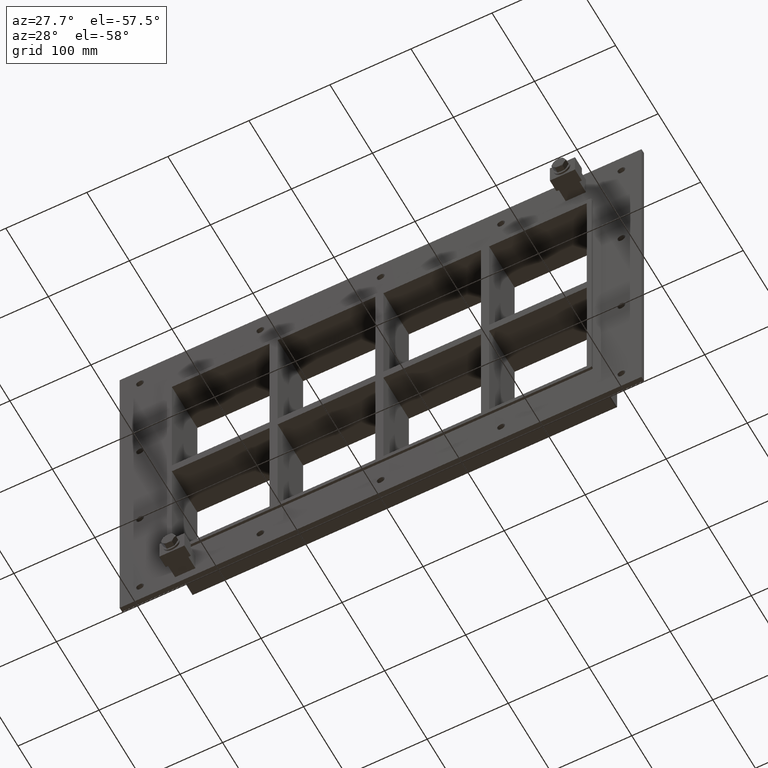
[diagram: clean part render]
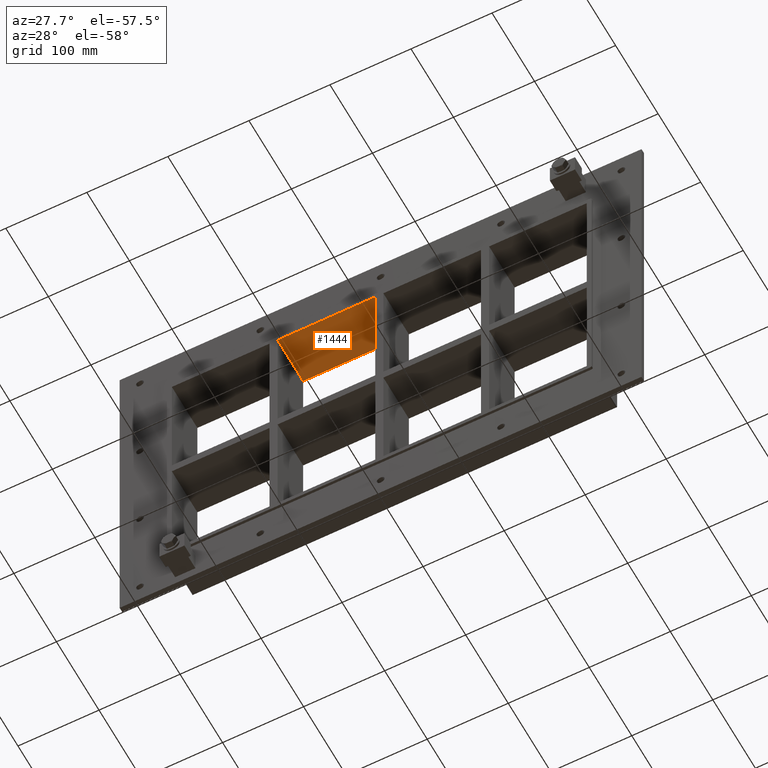
[diagram: same view with one face highlighted and labeled with its STEP entity id]
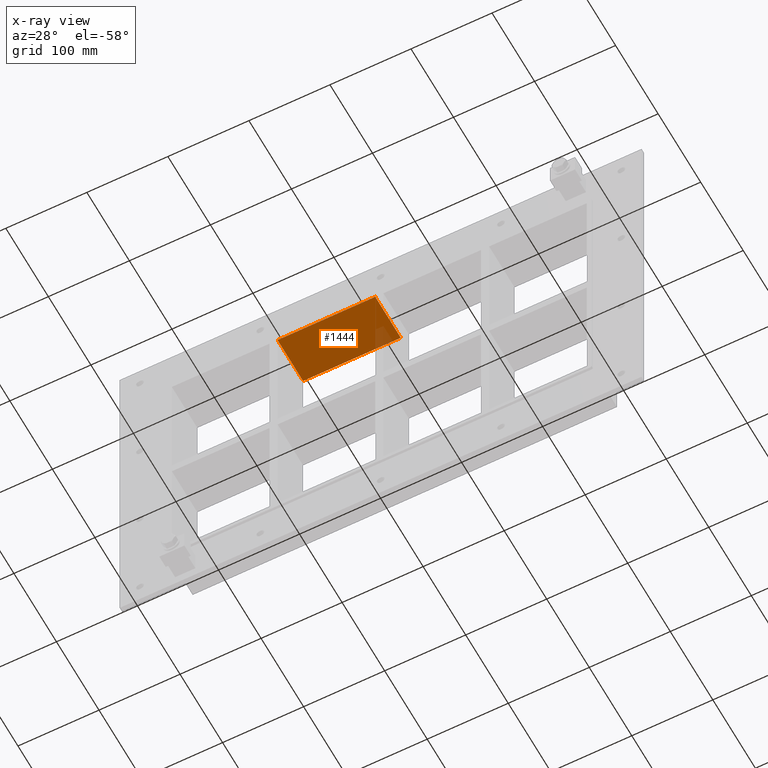
[diagram: x-ray of the same camera — body ghosted, the highlighted face saturated]
A machine part, auxiliary view. The second image highlights one B-rep face of the part: STEP entity #1444.
The next image is the same camera in x-ray: the body ghosted, the highlighted face saturated — about 5% of this face is hidden behind the body in this view.
In plain terms, the highlighted planar face has unit normal (0, 0, 1).
Its self-contained STEP definition (entity closure, byte-faithful):
#635=CARTESIAN_POINT('',(-5.000000000000302,-3.0,165.5));
#636=VERTEX_POINT('',#635);
#643=CARTESIAN_POINT('',(-5.000000000000302,57.0,165.5));
#644=VERTEX_POINT('',#643);
#645=CARTESIAN_POINT('',(-5.000000000000311,57.000000000000007,165.50000000000006));
#646=DIRECTION('',(0.0,-1.0,0.0));
#647=VECTOR('',#646,60.000000000000007);
#648=LINE('',#645,#647);
#649=EDGE_CURVE('',#644,#636,#648,.T.);
#992=CARTESIAN_POINT('',(-125.49999999999272,-3.0,165.5));
#993=VERTEX_POINT('',#992);
#1000=CARTESIAN_POINT('',(-125.49999999999272,-3.0,165.50000000000006));
#1001=DIRECTION('',(1.0,0.0,0.0));
#1002=VECTOR('',#1001,120.49999999999241);
#1003=LINE('',#1000,#1002);
#1004=EDGE_CURVE('',#993,#636,#1003,.T.);
#1369=CARTESIAN_POINT('',(-125.49999999999272,57.0,165.5));
#1370=VERTEX_POINT('',#1369);
#1371=CARTESIAN_POINT('',(-5.000000000000313,57.0,165.50000000000006));
#1372=DIRECTION('',(-1.0,0.0,0.0));
#1373=VECTOR('',#1372,120.49999999999241);
#1374=LINE('',#1371,#1373);
#1375=EDGE_CURVE('',#644,#1370,#1374,.T.);
#1428=CARTESIAN_POINT('',(-256.00000000000006,0.0,165.50000000000006));
#1429=DIRECTION('',(0.0,0.0,1.0));
#1430=DIRECTION('',(1.0,0.0,0.0));
#1431=AXIS2_PLACEMENT_3D('',#1428,#1429,#1430);
#1432=PLANE('',#1431);
#1433=ORIENTED_EDGE('',*,*,#649,.T.);
#1434=ORIENTED_EDGE('',*,*,#1004,.F.);
#1435=CARTESIAN_POINT('',(-125.49999999999274,-3.0,165.50000000000006));
#1436=DIRECTION('',(0.0,1.0,0.0));
#1437=VECTOR('',#1436,60.000000000000007);
#1438=LINE('',#1435,#1437);
#1439=EDGE_CURVE('',#993,#1370,#1438,.T.);
#1440=ORIENTED_EDGE('',*,*,#1439,.T.);
#1441=ORIENTED_EDGE('',*,*,#1375,.F.);
#1442=EDGE_LOOP('',(#1433,#1434,#1440,#1441));
#1443=FACE_OUTER_BOUND('',#1442,.T.);
#1444=ADVANCED_FACE('',(#1443),#1432,.F.);